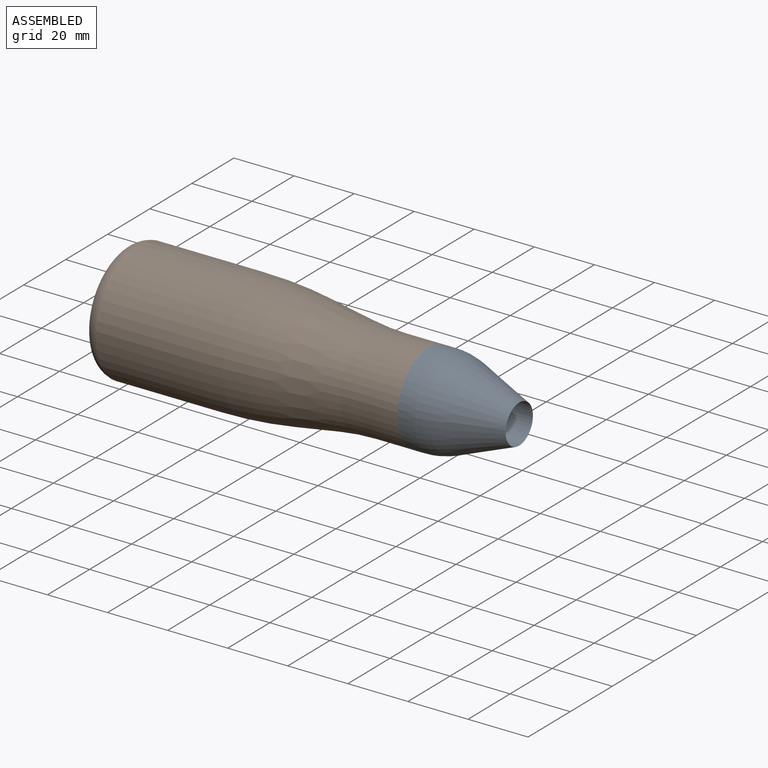
[diagram: assembled view]
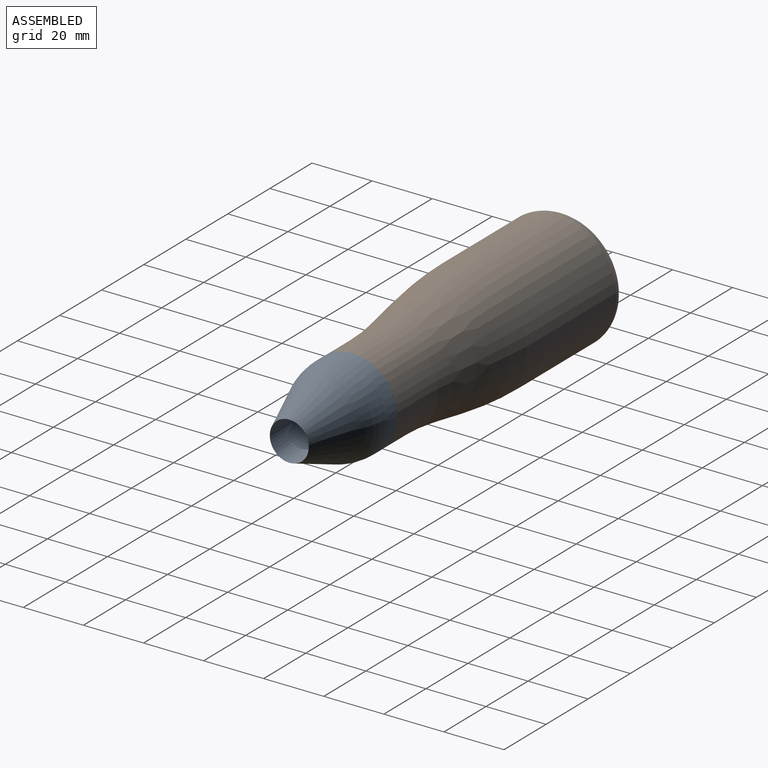
[diagram: assembled view, second angle]
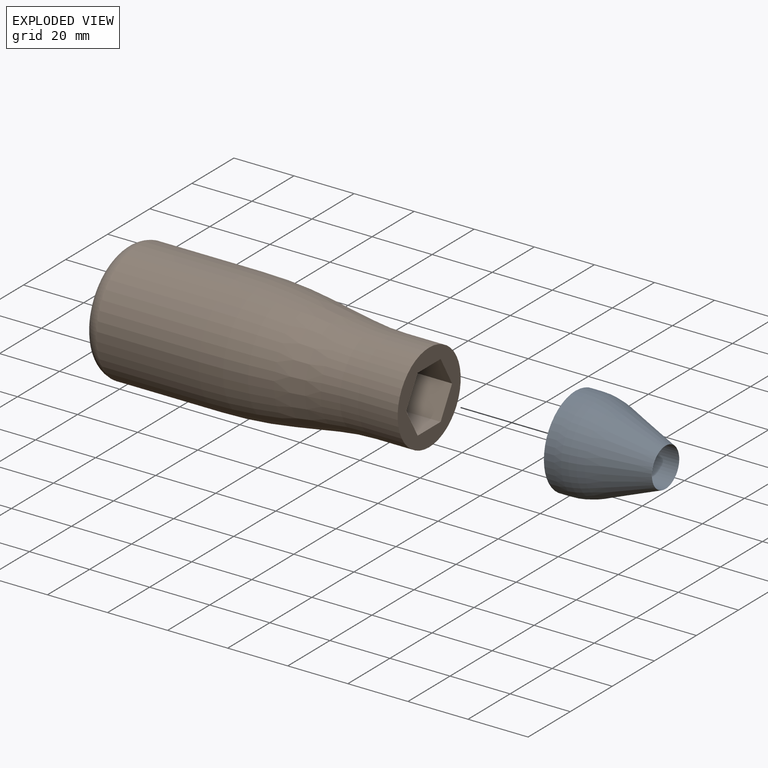
[diagram: exploded view]
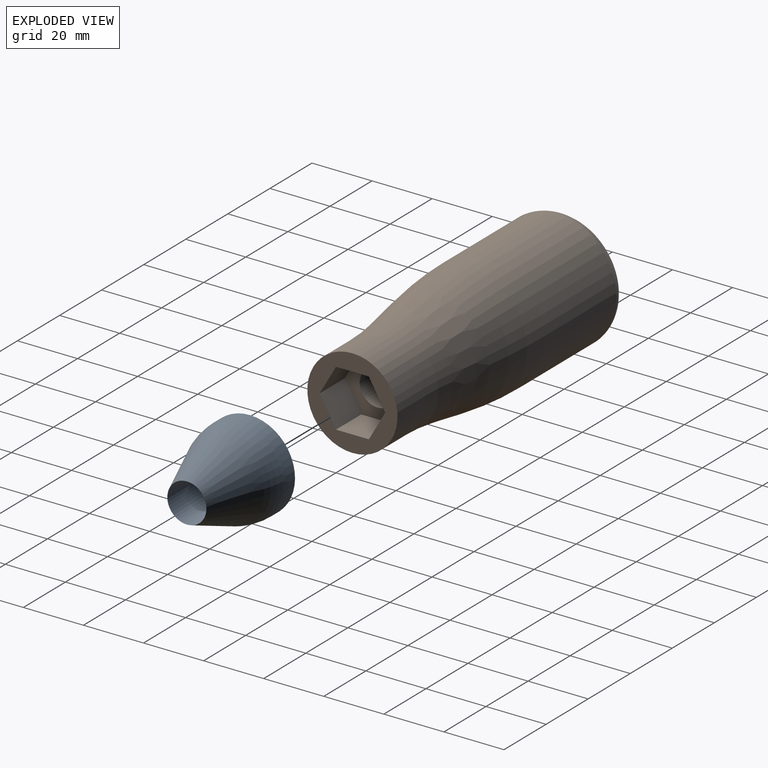
[diagram: exploded view, second angle]
ASSEMBLY  parts=2 mates=2
PART A: 5 faces, bbox 30x30x30 mm
  f0: cylinder r=6.5mm len=30mm, axis (1,0,0), area 1225.2mm2, adj f1,f4
  f1: cone r=13.32mm half-angle=21.1deg, axis (-1,0,0), area 1178.3mm2, adj f0,f2
  f2: revolved ~30x30mm, area 836.1mm2, adj f1,f3
  f3: cylinder r=15mm len=30mm, axis (1,0,0), area 314.6mm2, adj f2,f4
  f4: plane 30x30mm, normal (-1,0,0), area 574.1mm2, adj f0,f3
PART B: 157 faces, bbox 101.6x80.3x80.3 mm
  f0: plane 29.84x29.84mm, normal (-1,0,0), area 578.2mm2, adj f1,f17,f18,f19,f20,f21,f22,f23
  f1: torus R=14.92mm, axis (1,0,0), area 909.2mm2, adj f0,f5,f17,f35,f36,f44,f53,f54
  f2: plane 30x30mm, normal (1,0,0), area 397.5mm2, adj f3,f8,f9,f10,f11,f12,f13
  f3: cylinder r=15mm len=30mm, axis (1,0,0), area 1233.4mm2, adj f2,f7
  f4: cone r=20mm half-angle=8.9deg, axis (-1,0,0), area 1525.5mm2, adj f6,f7
  f5: cylinder r=20mm len=40mm, axis (1,0,0), area 4246.6mm2, adj f1,f6
  f6: revolved ~40x40mm, area 2898.8mm2, adj f4,f5
  f7: torus R=91.2mm, axis (1,0,0), area 1144.9mm2, adj f3,f4
  f8: plane 12x9.45mm, normal (0,-0.87,0.5), area 130.9mm2, adj f2,f9,f13,f14
  f9: plane 12x9.45mm, normal (0,-0.87,-0.5), area 130.9mm2, adj f2,f8,f10,f14
  f10: plane 12x10.91mm, normal (0,0,-1), area 130.9mm2, adj f2,f9,f11,f14
  f11: plane 12x9.45mm, normal (0,0.87,-0.5), area 130.9mm2, adj f2,f10,f12,f14
  f12: plane 12x9.45mm, normal (0,0.87,0.5), area 130.9mm2, adj f2,f11,f13,f14
  f13: plane 12x10.91mm, normal (0,0,1), area 130.9mm2, adj f2,f8,f12,f14
  f14: plane 21.82x18.9mm, normal (1,0,0), area 198.1mm2, adj f8,f9,f10,f11,f12,f13,f15
  f15: cylinder r=5.95mm len=38mm, axis (1,0,0), area 1420.6mm2, adj f14,f16
  f16: plane 11.9x11.9mm, normal (1,0,0), area 111.2mm2, adj f15
  f17: plane 4.91x2.02mm, normal (0,0,1), area 9.8mm2, adj f0,f1,f18,f36,f37
  f18: plane 2x0.78mm, normal (0,1,0), area 1.6mm2, adj f0,f17,f19,f37
  f19: plane 3.83x2mm, normal (0,0,-1), area 7.6mm2, adj f0,f18,f20,f37
  f20: plane 2x0.04mm, normal (0,1,0), area 0.1mm2, adj f0,f19,f21,f37
  f21: plane 2x1.63mm, normal (0,0.7,0.71), area 4.6mm2, adj f0,f20,f22,f37
  f22: extruded ~2x1.75mm, area 4.6mm2, adj f0,f21,f23,f37
  f23: extruded ~2x1.4mm, area 2.9mm2, adj f0,f22,f24,f37
  f24: extruded ~2x1.44mm, area 3.2mm2, adj f0,f23,f25,f37
  f25: extruded ~2x1.64mm, area 3.5mm2, adj f0,f24,f26,f37
  f26: extruded ~2.24x2mm, area 4.9mm2, adj f0,f25,f27,f37
  f27: plane 2x0.57mm, normal (0,-0.79,0.61), area 1.5mm2, adj f0,f26,f28,f37
  f28: extruded ~2x0.92mm, area 2.2mm2, adj f0,f27,f29,f37
  f29: extruded ~2x0.88mm, area 1.8mm2, adj f0,f28,f30,f37
  f30: extruded ~2x1mm, area 2.2mm2, adj f0,f29,f31,f37
  f31: extruded ~2x0.94mm, area 2.1mm2, adj f0,f30,f32,f37
  f32: extruded ~2x0.79mm, area 1.6mm2, adj f0,f31,f33,f37
  f33: extruded ~2x0.75mm, area 1.7mm2, adj f0,f32,f34,f37
  f34: extruded ~2x1.29mm, area 3.5mm2, adj f0,f33,f35,f37
  f35: plane 2x1.97mm, normal (0,-0.71,-0.71), area 5.6mm2, adj f0,f1,f34,f36,f37
  f36: plane 2x0.74mm, normal (0,-1,0), area 1.4mm2, adj f1,f17,f35,f37
  f37: plane 7.54x4.89mm, normal (-1,0,0), area 12.2mm2, adj f17,f18,f19,f20,f21,f22,f23,f24
  f38: plane 2x1.19mm, normal (0,0,-1), area 2.4mm2, adj f39,f55,f56,f85
  f39: plane 2.84x2mm, normal (0,1,0), area 5.7mm2, adj f38,f40,f56,f85
  f40: plane 2x1.12mm, normal (0,0,1), area 2.2mm2, adj f39,f41,f56,f85
  f41: extruded ~2x1.4mm, area 2.9mm2, adj f40,f42,f56,f85
  f42: extruded ~2x1.06mm, area 2.4mm2, adj f41,f43,f56,f85
  f43: extruded ~2x1.09mm, area 2.4mm2, adj f42,f55,f56,f85
  f44: plane 3.35x2.03mm, normal (0,0.86,-0.52), area 7.8mm2, adj f0,f1,f45,f54,f56
  f45: extruded ~2x1.99mm, area 5.4mm2, adj f0,f44,f46,f56
  f46: extruded ~2x1.58mm, area 3.5mm2, adj f0,f45,f47,f56
  f47: extruded ~2.02x2mm, area 4.3mm2, adj f0,f46,f48,f56
  f48: plane 2.04x2mm, normal (0,0,-1), area 4.1mm2, adj f0,f47,f49,f56
  f49: plane 7.44x2mm, normal (0,-1,0), area 14.9mm2, adj f0,f48,f50,f56
  f50: plane 2x0.86mm, normal (0,0,1), area 1.7mm2, adj f0,f49,f51,f56
  f51: plane 3.09x2mm, normal (0,1,0), area 6.2mm2, adj f0,f50,f52,f56
  f52: plane 2x1.55mm, normal (0,0,1), area 3.1mm2, adj f0,f51,f53,f56
  f53: plane 3.09x2mm, normal (0,-0.86,0.5), area 7.2mm2, adj f0,f1,f52,f54,f56
  f54: plane 2.02x1.04mm, normal (0,0,1), area 2mm2, adj f1,f44,f53,f56
  f55: extruded ~2x1.34mm, area 2.8mm2, adj f38,f43,f56,f85
  f56: plane 7.44x5.24mm, normal (-1,0,0), area 16.6mm2, adj f38,f39,f40,f41,f42,f43,f44,f45
  f57: plane 2x0.82mm, normal (0,0,1), area 1.6mm2, adj f0,f58,f65,f66
  f58: plane 7.44x2mm, normal (0,1,0), area 14.9mm2, adj f0,f57,f59,f66
  f59: plane 2x0.71mm, normal (0,0,-1), area 1.4mm2, adj f0,f58,f60,f66
  f60: plane 2x1.97mm, normal (0,-0.61,-0.79), area 5mm2, adj f0,f59,f61,f66
  f61: plane 2x0.58mm, normal (0,-0.79,0.61), area 1.5mm2, adj f0,f60,f62,f66
  f62: extruded ~2x1.21mm, area 3.1mm2, adj f0,f61,f63,f66
  f63: extruded ~2x0.24mm, area 0.7mm2, adj f0,f62,f64,f66
  f64: extruded ~2x1.25mm, area 2.5mm2, adj f0,f63,f65,f66
  f65: plane 5.3x2mm, normal (0,-1,0), area 10.6mm2, adj f0,f57,f64,f66
  f66: plane 7.44x2.68mm, normal (-1,0,0), area 7.6mm2, adj f57,f58,f59,f60,f61,f62,f63,f64
  f67: plane 2.47x2mm, normal (0,-1,0), area 4.9mm2, adj f68,f83,f84,f156
  f68: plane 2.77x2mm, normal (0,0,-1), area 5.5mm2, adj f67,f69,f84,f156
  f69: plane 3.31x2.32mm, normal (0,0.82,0.58), area 8.1mm2, adj f68,f70,f84,f156
  f70: extruded ~2x0.81mm, area 1.9mm2, adj f69,f71,f84,f156
  f71: plane 2x0.04mm, normal (0,0,1), area 0.1mm2, adj f70,f83,f84,f156
  f72: plane 2x1.1mm, normal (0,0,1), area 2.2mm2, adj f0,f73,f82,f84
  f73: plane 2x0.77mm, normal (0,1,0), area 1.5mm2, adj f0,f72,f74,f84
  f74: plane 2x1.1mm, normal (0,0,-1), area 2.2mm2, adj f0,f73,f75,f84
  f75: plane 5x2mm, normal (0,1,0), area 10mm2, adj f0,f74,f76,f84
  f76: plane 2x0.9mm, normal (0,0,-1), area 1.8mm2, adj f0,f75,f77,f84
  f77: plane 5.03x3.53mm, normal (0,-0.82,-0.57), area 12.3mm2, adj f0,f76,f78,f84
  f78: plane 2x0.74mm, normal (0,-1,0), area 1.5mm2, adj f0,f77,f79,f84
  f79: plane 3.62x2mm, normal (0,0,1), area 7.2mm2, adj f0,f78,f80,f84
  f80: plane 2x1.71mm, normal (0,-1,0), area 3.4mm2, adj f0,f79,f81,f84
  f81: plane 2x0.81mm, normal (0,0,1), area 1.6mm2, adj f0,f80,f82,f84
  f82: plane 2x1.71mm, normal (0,1,0), area 3.4mm2, adj f0,f72,f81,f84
  f83: extruded ~2x1.64mm, area 3.3mm2, adj f67,f71,f84,f156
  f84: plane 7.48x5.53mm, normal (-1,0,0), area 13.4mm2, adj f67,f68,f69,f70,f71,f72,f73,f74
  f85: plane 2.96x2.84mm, normal (-1,0,0), area 7.6mm2, adj f38,f39,f40,f41,f42,f43,f55
  f86: plane 2x1.2mm, normal (0,0,-1), area 2.4mm2, adj f0,f87,f105,f106
  f87: plane 4x2mm, normal (0,-1,0), area 8mm2, adj f0,f86,f88,f106
  f88: plane 2x1.2mm, normal (0,0,1), area 2.4mm2, adj f0,f87,f89,f106
  f89: plane 2x1.4mm, normal (0,1,0), area 2.8mm2, adj f0,f88,f90,f106
  f90: plane 8x2mm, normal (0,0,1), area 16mm2, adj f0,f89,f91,f106
  f91: plane 2x1.4mm, normal (0,-1,0), area 2.8mm2, adj f0,f90,f92,f106
  f92: plane 2x1.2mm, normal (0,0,1), area 2.4mm2, adj f0,f91,f93,f106
  f93: plane 2x1.4mm, normal (0,1,0), area 2.8mm2, adj f0,f92,f94,f106
  f94: plane 8x2mm, normal (0,0,1), area 16mm2, adj f0,f93,f95,f106
  f95: plane 2x1.4mm, normal (0,-1,0), area 2.8mm2, adj f0,f94,f96,f106
  f96: plane 2x1.2mm, normal (0,0,1), area 2.4mm2, adj f0,f95,f97,f106
  f97: plane 4x2mm, normal (0,1,0), area 8mm2, adj f0,f96,f98,f106
  f98: plane 2x1.2mm, normal (0,0,-1), area 2.4mm2, adj f0,f97,f99,f106
  f99: plane 2x1.4mm, normal (0,-1,0), area 2.8mm2, adj f0,f98,f100,f106
  f100: plane 8x2mm, normal (0,0,-1), area 16mm2, adj f0,f99,f101,f106
  f101: plane 2x1.4mm, normal (0,1,0), area 2.8mm2, adj f0,f100,f102,f106
  f102: plane 2x1.2mm, normal (0,0,-1), area 2.4mm2, adj f0,f101,f103,f106
  f103: plane 2x1.4mm, normal (0,-1,0), area 2.8mm2, adj f0,f102,f104,f106
  f104: plane 8x2mm, normal (0,0,-1), area 16mm2, adj f0,f103,f105,f106
  f105: plane 2x1.4mm, normal (0,1,0), area 2.8mm2, adj f0,f86,f104,f106
  f106: plane 19.6x4mm, normal (-1,0,0), area 33.6mm2, adj f86,f87,f88,f89,f90,f91,f92,f93
  f107: extruded ~2x1.85mm, area 4mm2, adj f0,f108,f125,f126
  f108: extruded ~2x1.17mm, area 2.3mm2, adj f0,f107,f109,f126
  f109: plane 2.23x2mm, normal (0,1,0.08), area 4.5mm2, adj f0,f108,f110,f126
  f110: plane 2.98x2mm, normal (0,0,1), area 6mm2, adj f0,f109,f111,f126
  f111: plane 2x0.78mm, normal (0,1,0), area 1.6mm2, adj f0,f110,f112,f126
  f112: plane 3.7x2mm, normal (0,0,-1), area 7.4mm2, adj f0,f111,f113,f126
  f113: plane 3.48x2mm, normal (0,-1,-0.08), area 7mm2, adj f0,f112,f114,f126
  f114: plane 2x0.44mm, normal (0,-0.54,0.84), area 1mm2, adj f0,f113,f115,f126
  f115: extruded ~2x1.29mm, area 2.6mm2, adj f0,f114,f116,f126
  f116: extruded ~2x1.91mm, area 5.6mm2, adj f0,f115,f117,f126
  f117: extruded ~2x1.22mm, area 2.7mm2, adj f0,f116,f118,f126
  f118: extruded ~2x1.39mm, area 3mm2, adj f0,f117,f119,f126
  f119: extruded ~2x1.04mm, area 2.1mm2, adj f0,f118,f120,f126
  f120: extruded ~2x0.88mm, area 1.9mm2, adj f0,f119,f121,f126
  f121: plane 2x0.81mm, normal (0,-1,0), area 1.6mm2, adj f0,f120,f122,f126
  f122: extruded ~2x1.92mm, area 4mm2, adj f0,f121,f123,f126
  f123: extruded ~2.03x2mm, area 4.4mm2, adj f0,f122,f124,f126
  f124: extruded ~2x1.81mm, area 4mm2, adj f0,f123,f125,f126
  f125: extruded ~2x1.6mm, area 3.6mm2, adj f0,f107,f124,f126
  f126: plane 7.54x4.68mm, normal (-1,0,0), area 12.8mm2, adj f107,f108,f109,f110,f111,f112,f113,f114
  f127: extruded ~2x1.17mm, area 2.5mm2, adj f0,f128,f154,f155
  f128: extruded ~2x1.36mm, area 3.1mm2, adj f0,f127,f129,f155
  f129: extruded ~2x1.68mm, area 3.6mm2, adj f0,f128,f130,f155
  f130: extruded ~2x1.26mm, area 2.6mm2, adj f0,f129,f131,f155
  f131: extruded ~2x1.05mm, area 2.4mm2, adj f0,f130,f132,f155
  f132: plane 2x0.57mm, normal (0,-0.8,0.6), area 1.4mm2, adj f0,f131,f133,f155
  f133: extruded ~2x0.99mm, area 2.2mm2, adj f0,f132,f134,f155
  f134: extruded ~2x0.92mm, area 1.9mm2, adj f0,f133,f135,f155
  f135: extruded ~2x1.02mm, area 2.2mm2, adj f0,f134,f136,f155
  f136: extruded ~2x0.85mm, area 1.9mm2, adj f0,f135,f137,f155
  f137: extruded ~2x1.07mm, area 2.5mm2, adj f0,f136,f138,f155
  f138: extruded ~2x1.38mm, area 2.9mm2, adj f0,f137,f139,f155
  f139: plane 2x0.74mm, normal (0,0,-1), area 1.5mm2, adj f0,f138,f140,f155
  f140: plane 2x0.73mm, normal (0,-1,0), area 1.5mm2, adj f0,f139,f141,f155
  f141: plane 2x0.73mm, normal (0,0,1), area 1.5mm2, adj f0,f140,f142,f155
  f142: extruded ~2.13x2mm, area 5.7mm2, adj f0,f141,f143,f155
  f143: extruded ~2x1.93mm, area 5.6mm2, adj f0,f142,f144,f155
  f144: extruded ~2x1.04mm, area 2.1mm2, adj f0,f143,f145,f155
  f145: extruded ~2x1.03mm, area 2.2mm2, adj f0,f144,f146,f155
  f146: plane 2x0.8mm, normal (0,-1,0), area 1.6mm2, adj f0,f145,f147,f155
  f147: extruded ~2x0.95mm, area 2mm2, adj f0,f146,f148,f155
  f148: extruded ~2x1.08mm, area 2.2mm2, adj f0,f147,f149,f155
  f149: extruded ~2.09x2mm, area 4.4mm2, adj f0,f148,f150,f155
  f150: extruded ~2x1.64mm, area 3.7mm2, adj f0,f149,f151,f155
  f151: extruded ~2x1.2mm, area 2.6mm2, adj f0,f150,f152,f155
  f152: extruded ~2x1.33mm, area 2.9mm2, adj f0,f151,f153,f155
  f153: plane 2x0.04mm, normal (0,1,0), area 0.1mm2, adj f0,f152,f154,f155
  f154: extruded ~2x1.13mm, area 2.6mm2, adj f0,f127,f153,f155
  f155: plane 7.65x4.87mm, normal (-1,0,0), area 12.8mm2, adj f127,f128,f129,f130,f131,f132,f133,f134
  f156: plane 4.11x2.82mm, normal (-1,0,0), area 5.5mm2, adj f67,f68,f69,f70,f71,f83
PLACE A t=(29.45,5.13,-4.82)mm
PLACE B t=(-0.55,5.13,-4.82)mm
MATE planar B.f2 <-> A.f0  axis (1,0,0) through (-0.55,10.58,4.63)mm
MATE cylindrical B.f1 <-> A.f0  axis (1,0,0) through (-7.09,5.13,-4.82)mm
